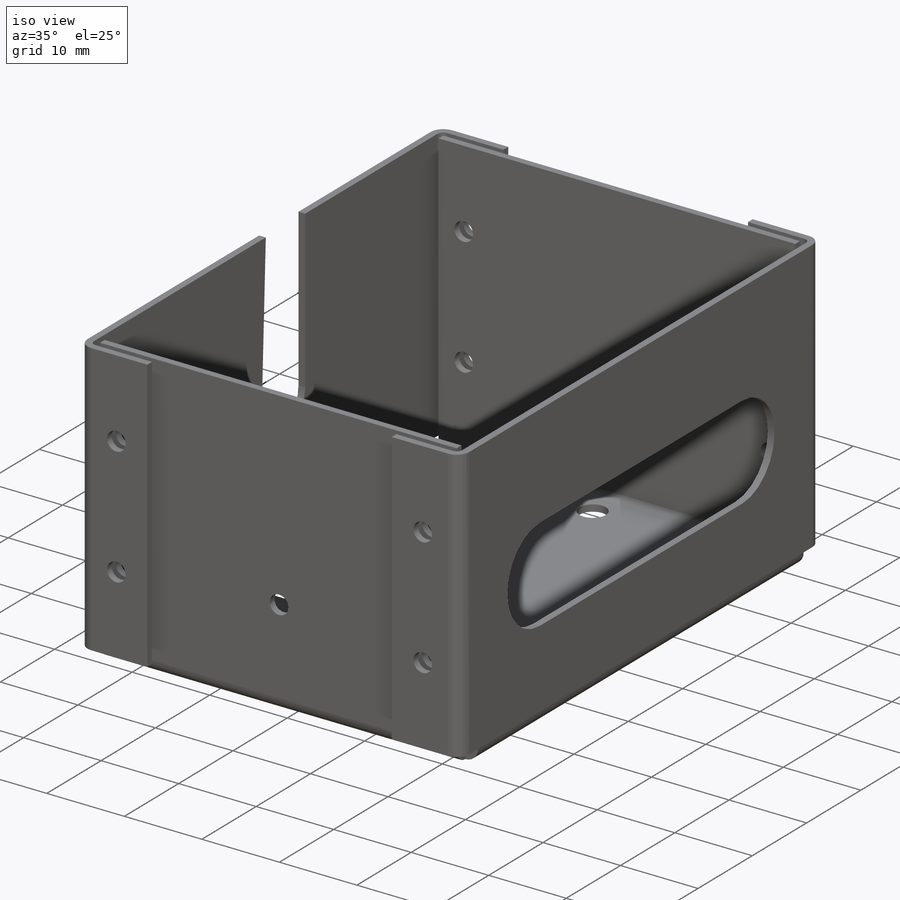
[diagram: iso view]
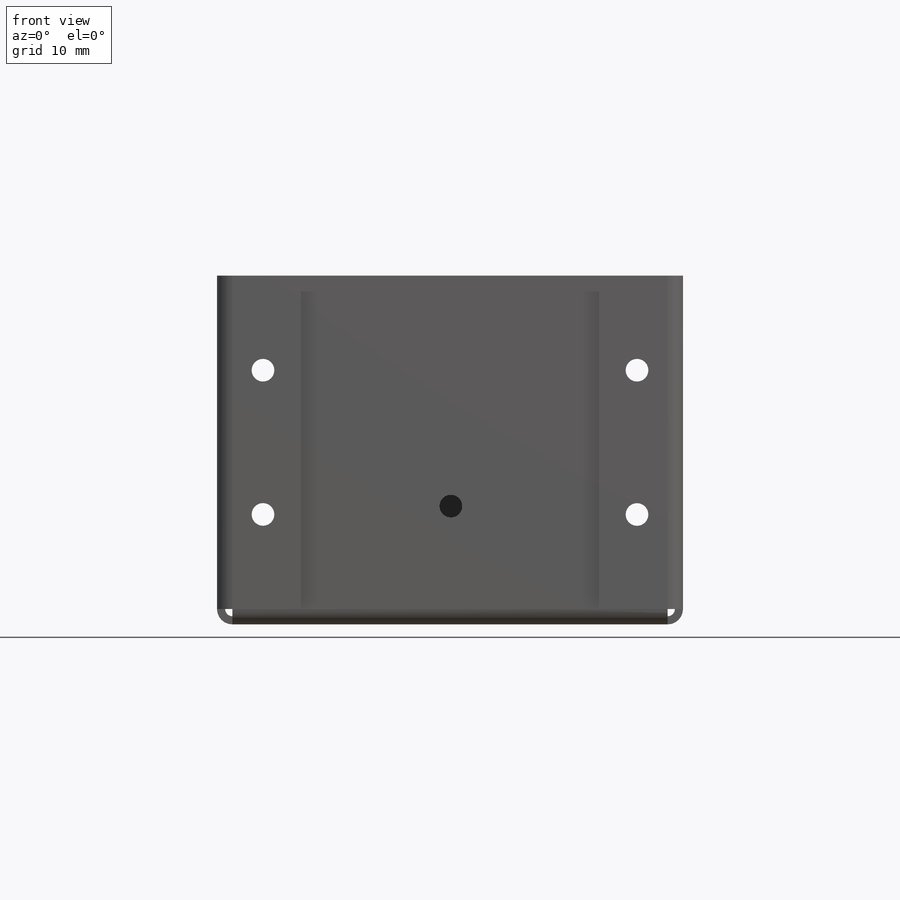
[diagram: front view]
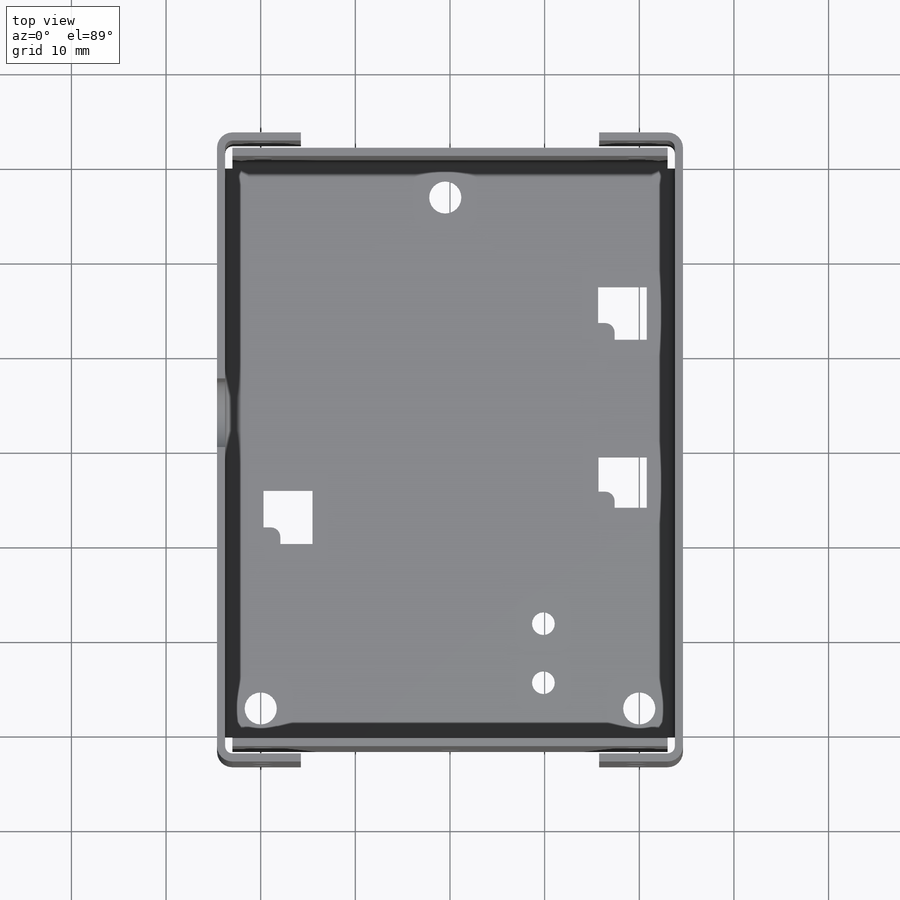
[diagram: top view]
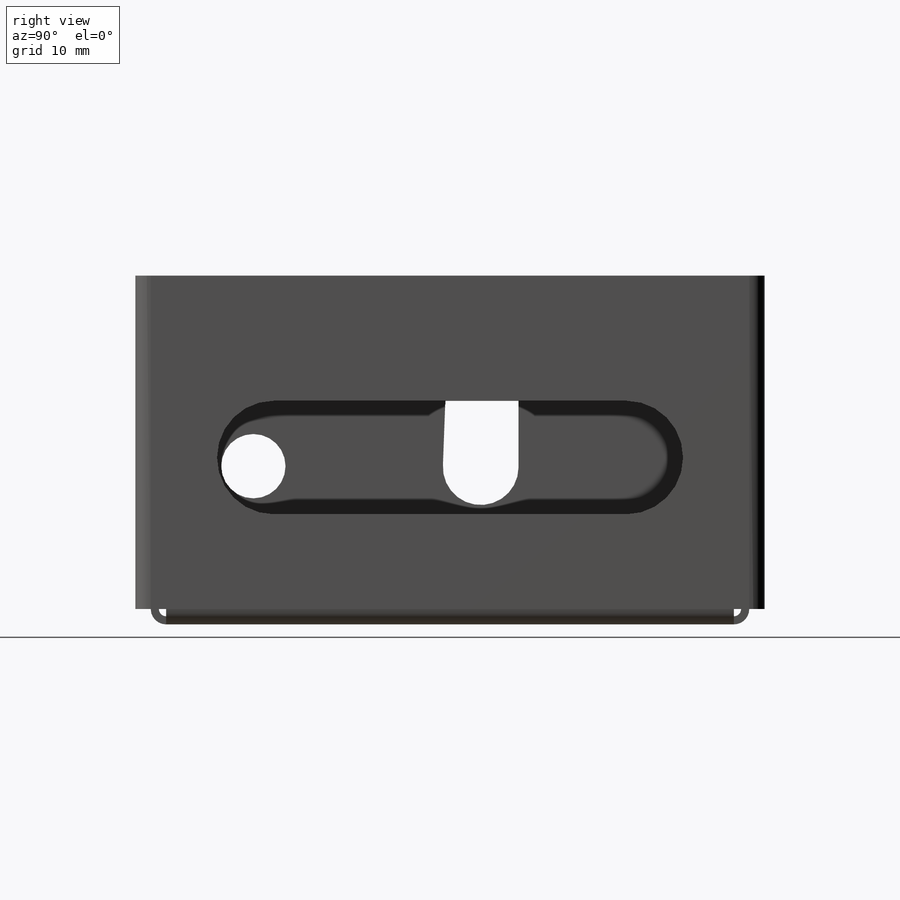
[diagram: right view]
SOLIDWORKS PART (.sldprt)
format: sldprt  version: not decoded by parser v0  size: 1,128,448 bytes
history: native  units: mm
features: sketch x68, sheet_metal_op x29, fillet x21, cut_extrude x7, hole x5, mirror x3, material x1, plane x1 + 132 further entries (+12 scaffold rows collapsed; 21 parser-record rows omitted)
feature tree (300):
  scaffold x12  (default folders/planes/origin — collapsed)
  material  "Material <not specified>"
  sketch  "Sketch2"  dims[c1.D1=60.0mm c1.D2=46.0mm c2.D1=0.762mm c2.D2=0.389 c2.D3=1.1938mm c2.D6=500.0mm]
  sheet_metal_op  "Base-Flange1"
  sketch  "Sketch9"  dims[c1.D1=0.762mm c1.D4=90.0deg c1.D5=1.0 c1.D8=0.43mm c1.D9=0.43mm c2.D1=0.762mm c2.D2=500.0mm c2.D3=0.0mm c2.D6=10.0mm c2.D7=36.0mm]
  sketch  "Sketch10"  dims[D1=30.0mm]
  plane  "Plane1"  Offset=0 Edge-Flange2=0
  sketch  "Sketch13"
  sheet_metal_op  "EdgeBend2"
  mirror  "Mirror1"
  sheet_metal_op  "MirrorBend1"  Edge-Flange3=0
  sketch  "Sketch16"
  sheet_metal_op  "EdgeBend3"  Edge-Flange5=0
  sketch  "Sketch22"
  sheet_metal_op  "EdgeBend5"
  mirror  "Mirror2"
  sheet_metal_op  "MirrorBend2"  Edge-Flange6=0
  sketch  "Sketch25"
  sheet_metal_op  "EdgeBend6"
  mirror  "Mirror3"
  sheet_metal_op  "MirrorBend3"
  hole  "M3 Clearance Hole1"  Diameter=3.4mm Depth=12mm
  sketch  "Sketch27"  dims[D1=3.0mm D2=3.0mm D3=3.0mm D4=3.0mm D5=3.0mm D6=22.5mm]
  sketch  "Sketch26"  dims[hole-wizard template sketch: 50 standard entries collapsed; hole parameters above]
  sketch  "Sketch28"  dims[c1.D1=23.7mm c1.D2=0.0mm c1.D3=0.0mm c2.D1=9.098mm]
  cut_extrude  "Cut-Extrude1"  Depth=10mm
  sketch  "Sketch29"  dims[c1.D2=3.4mm c1.D1=24.025mm c2.D2=15.0mm]
  cut_extrude  "Cut-Extrude2"  Depth=10mm
  hole  "M2 Clearance Hole1"  Diameter=2.4mm Depth=12mm
  sketch  "Sketch31"
  sketch  "Sketch30"  dims[hole-wizard template sketch: 49 standard entries collapsed; hole parameters kept: c15.Drill Angle=118.0deg]
  hole  "M3 Clearance Hole2"  Diameter=3.4mm Depth=12mm
  sketch  "Sketch33"
  sketch  "Sketch32"  dims[hole-wizard template sketch: 50 standard entries collapsed; hole parameters above]
  hole  "M2 Clearance Hole2"  Diameter=2.4mm Depth=66.488mm
  sketch  "Sketch36"  dims[D1=10.0mm D2=10.0mm D3=10.0mm D4=10.0mm D5=4.0mm D6=4.0mm D7=4.0mm D8=4.0mm]
  sketch  "Sketch37"  dims[hole-wizard template sketch: 60 standard entries collapsed; hole parameters kept: c18.Thru Hole Depth=66.488mm]
  hole  "M2 Clearance Hole4"  Diameter=2.4mm Depth=12mm
  sketch  "Sketch39"
  sketch  "Sketch38"  dims[hole-wizard template sketch: 49 standard entries collapsed; hole parameters kept: c15.Drill Angle=118.0deg]
  sketch  "Sketch40"  dims[D1=13.0mm D2=13.0mm D3=12.0mm D4=16.0mm]
  cut_extrude  "Cut-Extrude3"  Depth=10mm
  sketch  "Sketch41"
  sketch  "Sketch42"
  sketch  "Sketch43"
  cut_extrude  "Cut-Extrude4"  Depth=10mm
  cut_extrude  "Cut-Extrude5"  Depth=10mm
  cut_extrude  "Cut-Extrude6"  Depth=10mm
  fillet  "Fillet1"  Radius=1mm
  sketch  "Sketch44"
  cut_extrude  "Cut-Extrude7"  Depth=10mm
  sketch  "Bend-Lines1"
  sketch  "Bounding-Box1"
  sheet_metal_op  "Sheet-Metal(1)"
  "Flat-Pattern(1)"
  sketch  "Bend-Lines2"
  sketch  "Bounding-Box2"
  parser-record x21  (decoder bookkeeping rows leaked as tree rows — omitted from the tree; the rows remain in map.json)
  fillet  "Sheet-Metal(2)"  Radius=0.762mm
  sheet_metal_op  "Flat-Pattern(1)"
  sketch  "Bend-Lines2"
  sketch  "Bounding-Box2"
  fillet  "Sheet-Metal(3)"  Radius=0.762mm
  sheet_metal_op  "Flat-Pattern(1)"
  sketch  "Bend-Lines2"
  sketch  "Bounding-Box2"
  "Flatten-<EdgeBend1>1"
  "Flatten-<EdgeBend2>1"
  fillet  "Sheet-Metal(4)"  Radius=0.762mm
  sheet_metal_op  "Flat-Pattern(1)"
  sketch  "Bend-Lines2"
  sketch  "Bounding-Box2"
  "Flatten-<EdgeBend1>1"
  "Flatten-<EdgeBend2>1"
  "Flatten-<MirrorBend1>1"
  fillet  "Sheet-Metal(5)"  Radius=0.762mm
  sheet_metal_op  "Flat-Pattern(1)"
  sketch  "Bend-Lines2"
  sketch  "Bounding-Box2"
  "Flatten-<EdgeBend1>1"
  "Flatten-<EdgeBend2>1"
  "Flatten-<MirrorBend1>1"
  "Flatten-<EdgeBend3>1"
  fillet  "Sheet-Metal(7)"  Radius=0.762mm
  sheet_metal_op  "Flat-Pattern(1)"
  sketch  "Bend-Lines2"
  sketch  "Bounding-Box2"
  "Flatten-<EdgeBend1>1"
  "Flatten-<EdgeBend2>1"
  "Flatten-<MirrorBend1>1"
  "Flatten-<EdgeBend3>1"
  "Flatten-<EdgeBend5>1"
  fillet  "Sheet-Metal(8)"  Radius=0.762mm
  sheet_metal_op  "Flat-Pattern(1)"
  sketch  "Bend-Lines2"
  sketch  "Bounding-Box2"
  "Flatten-<EdgeBend1>1"
  "Flatten-<EdgeBend2>1"
  "Flatten-<MirrorBend1>1"
  "Flatten-<EdgeBend3>1"
  "Flatten-<EdgeBend5>1"
  "Flatten-<MirrorBend2>1"
  fillet  "Sheet-Metal(9)"  Radius=0.762mm
  sheet_metal_op  "Flat-Pattern(1)"
  sketch  "Bend-Lines2"
  sketch  "Bounding-Box2"
  "Flatten-<EdgeBend1>1"
  "Flatten-<EdgeBend2>1"
  "Flatten-<MirrorBend1>1"
  "Flatten-<EdgeBend3>1"
  "Flatten-<EdgeBend5>1"
  "Flatten-<MirrorBend2>1"
  "Flatten-<EdgeBend6>1"
  fillet  "Sheet-Metal(10)"  Radius=0.762mm
  sheet_metal_op  "Flat-Pattern(1)"
  sketch  "Bend-Lines2"
  sketch  "Bounding-Box2"
  "Flatten-<EdgeBend1>1"
  "Flatten-<EdgeBend2>1"
  "Flatten-<MirrorBend1>1"
  "Flatten-<EdgeBend3>1"
  "Flatten-<EdgeBend5>1"
  "Flatten-<MirrorBend2>1"
  "Flatten-<EdgeBend6>1"
  "Flatten-<MirrorBend3>1"
  fillet  "Sheet-Metal(11)"  Radius=0.762mm
  sheet_metal_op  "Flat-Pattern(1)"
  sketch  "Bend-Lines2"
  sketch  "Bounding-Box2"
  "Flatten-<EdgeBend1>1"
  "Flatten-<EdgeBend2>1"
  "Flatten-<MirrorBend1>1"
  "Flatten-<EdgeBend3>1"
  "Flatten-<EdgeBend5>1"
  "Flatten-<MirrorBend2>1"
  "Flatten-<EdgeBend6>1"
  "Flatten-<MirrorBend3>1"
  fillet  "Sheet-Metal(12)"  Radius=0.762mm
  sheet_metal_op  "Flat-Pattern(1)"
  sketch  "Bend-Lines2"
  sketch  "Bounding-Box2"
  "Flatten-<EdgeBend1>1"
  "Flatten-<EdgeBend2>1"
  "Flatten-<MirrorBend1>1"
  "Flatten-<EdgeBend3>1"
  "Flatten-<EdgeBend5>1"
  "Flatten-<MirrorBend2>1"
  "Flatten-<EdgeBend6>1"
  "Flatten-<MirrorBend3>1"
  fillet  "Sheet-Metal(13)"  Radius=0.762mm
  sheet_metal_op  "Flat-Pattern(1)"
  sketch  "Bend-Lines2"
  sketch  "Bounding-Box2"
  "Flatten-<EdgeBend1>1"
  "Flatten-<EdgeBend2>1"
  "Flatten-<MirrorBend1>1"
  "Flatten-<EdgeBend3>1"
  "Flatten-<EdgeBend5>1"
  "Flatten-<MirrorBend2>1"
  "Flatten-<EdgeBend6>1"
  "Flatten-<MirrorBend3>1"
  fillet  "Sheet-Metal(14)"  Radius=0.762mm
  sheet_metal_op  "Flat-Pattern(1)"
  sketch  "Bend-Lines2"
  sketch  "Bounding-Box2"
  "Flatten-<EdgeBend1>1"
  "Flatten-<EdgeBend2>1"
  "Flatten-<MirrorBend1>1"
  "Flatten-<EdgeBend3>1"
  "Flatten-<EdgeBend5>1"
  "Flatten-<MirrorBend2>1"
  "Flatten-<EdgeBend6>1"
  "Flatten-<MirrorBend3>1"
  fillet  "Sheet-Metal(15)"  Radius=0.762mm
  sheet_metal_op  "Flat-Pattern(1)"
  sketch  "Bend-Lines2"
  sketch  "Bounding-Box2"
  "Flatten-<EdgeBend1>1"
  "Flatten-<EdgeBend2>1"
  "Flatten-<MirrorBend1>1"
  "Flatten-<EdgeBend3>1"
  "Flatten-<EdgeBend5>1"
  "Flatten-<MirrorBend2>1"
  "Flatten-<EdgeBend6>1"
  "Flatten-<MirrorBend3>1"
  fillet  "Sheet-Metal(16)"  Radius=0.762mm
  sheet_metal_op  "Flat-Pattern(1)"
  sketch  "Bend-Lines2"
  sketch  "Bounding-Box2"
  "Flatten-<EdgeBend1>1"
  "Flatten-<EdgeBend2>1"
  "Flatten-<MirrorBend1>1"
  "Flatten-<EdgeBend3>1"
  "Flatten-<EdgeBend5>1"
  "Flatten-<MirrorBend2>1"
  "Flatten-<EdgeBend6>1"
  "Flatten-<MirrorBend3>1"
  fillet  "Sheet-Metal(17)"  Radius=0.762mm
  sheet_metal_op  "Flat-Pattern(1)"
  sketch  "Bend-Lines2"
  sketch  "Bounding-Box2"
  "Flatten-<EdgeBend1>1"
  "Flatten-<EdgeBend2>1"
  "Flatten-<MirrorBend1>1"
  "Flatten-<EdgeBend3>1"
  "Flatten-<EdgeBend5>1"
  "Flatten-<MirrorBend2>1"
  "Flatten-<EdgeBend6>1"
  "Flatten-<MirrorBend3>1"
  fillet  "Sheet-Metal(18)"  Radius=0.762mm
  sheet_metal_op  "Flat-Pattern(1)"
  sketch  "Bend-Lines2"
  sketch  "Bounding-Box2"
  "Flatten-<EdgeBend1>1"
  "Flatten-<EdgeBend2>1"
  "Flatten-<MirrorBend1>1"
  "Flatten-<EdgeBend3>1"
  "Flatten-<EdgeBend5>1"
  "Flatten-<MirrorBend2>1"
  "Flatten-<EdgeBend6>1"
  "Flatten-<MirrorBend3>1"
  fillet  "Sheet-Metal(19)"  Radius=0.762mm
  sheet_metal_op  "Flat-Pattern(1)"
  sketch  "Bend-Lines2"
  sketch  "Bounding-Box2"
  "Flatten-<EdgeBend1>1"
  "Flatten-<EdgeBend2>1"
  "Flatten-<MirrorBend1>1"
  "Flatten-<EdgeBend3>1"
  "Flatten-<EdgeBend5>1"
  "Flatten-<MirrorBend2>1"
  "Flatten-<EdgeBend6>1"
  "Flatten-<MirrorBend3>1"
  fillet  "Sheet-Metal(20)"  Radius=0.762mm
  sheet_metal_op  "Flat-Pattern(1)"
  sketch  "Bend-Lines2"
  sketch  "Bounding-Box2"
  "Flatten-<EdgeBend1>1"
  "Flatten-<EdgeBend2>1"
  "Flatten-<MirrorBend1>1"
  "Flatten-<EdgeBend3>1"
  "Flatten-<EdgeBend5>1"
  "Flatten-<MirrorBend2>1"
  "Flatten-<EdgeBend6>1"
  "Flatten-<MirrorBend3>1"
  fillet  "Sheet-Metal(21)"  Radius=0.762mm
  sheet_metal_op  "Flat-Pattern(1)"
  sketch  "Bend-Lines2"
  sketch  "Bounding-Box2"
  "Flatten-<EdgeBend1>1"
  "Flatten-<EdgeBend2>1"
  "Flatten-<MirrorBend1>1"
  "Flatten-<EdgeBend3>1"
  "Flatten-<EdgeBend5>1"
  "Flatten-<MirrorBend2>1"
  "Flatten-<EdgeBend6>1"
  "Flatten-<MirrorBend3>1"
  fillet  "Sheet-Metal(22)"  Radius=0.762mm
  sheet_metal_op  "Flat-Pattern(1)"
  sketch  "Bend-Lines2"
  sketch  "Bounding-Box2"
  "Flatten-<EdgeBend1>1"
  "Flatten-<EdgeBend2>1"
  "Flatten-<MirrorBend1>1"
  "Flatten-<EdgeBend3>1"
  "Flatten-<EdgeBend5>1"
  "Flatten-<MirrorBend2>1"
  "Flatten-<EdgeBend6>1"
  "Flatten-<MirrorBend3>1"
decode coverage: 49 of 133 modeling features carry decoded parameters; 132 rows unclassified (native names shown)
note: ~ marks probable driven/reference dimensions
summary: Diameter pulled from absorbed wizard sketch
note: suppression state not decoded; provenance and decode notes live in map.json
